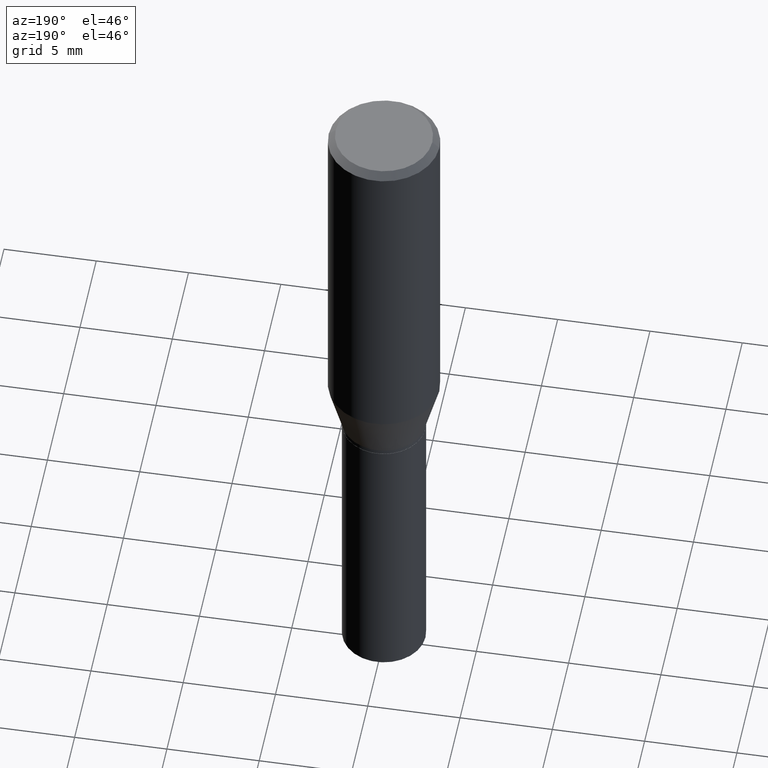
[diagram: clean part render]
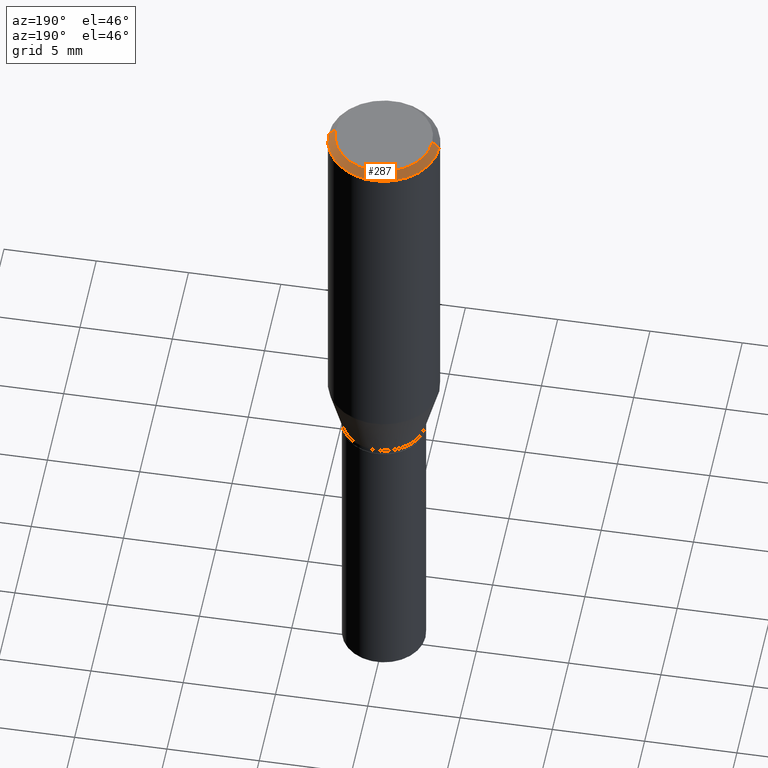
[diagram: same view with one face highlighted and labeled with its STEP entity id]
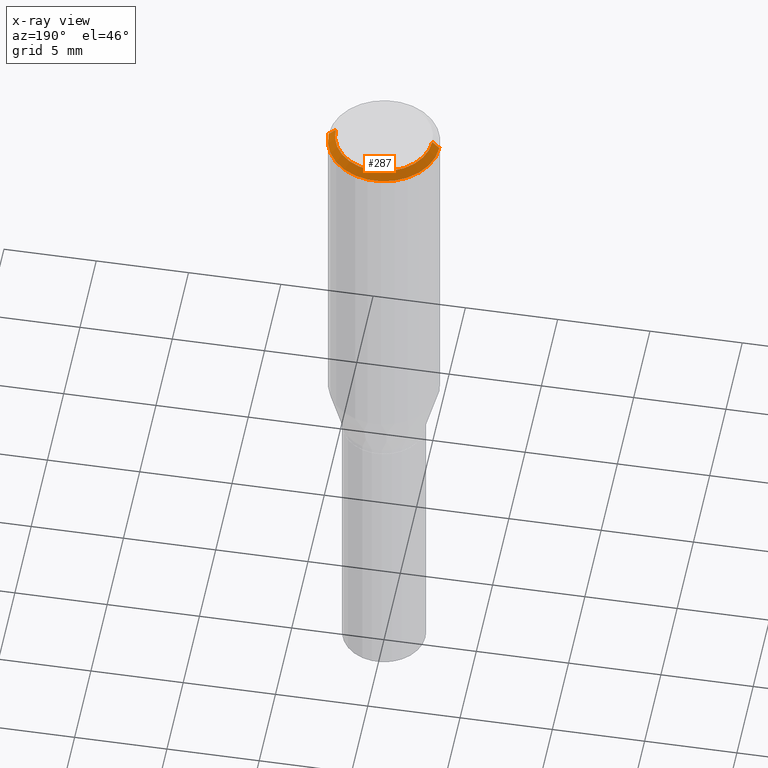
[diagram: x-ray of the same camera — body ghosted, the highlighted face saturated]
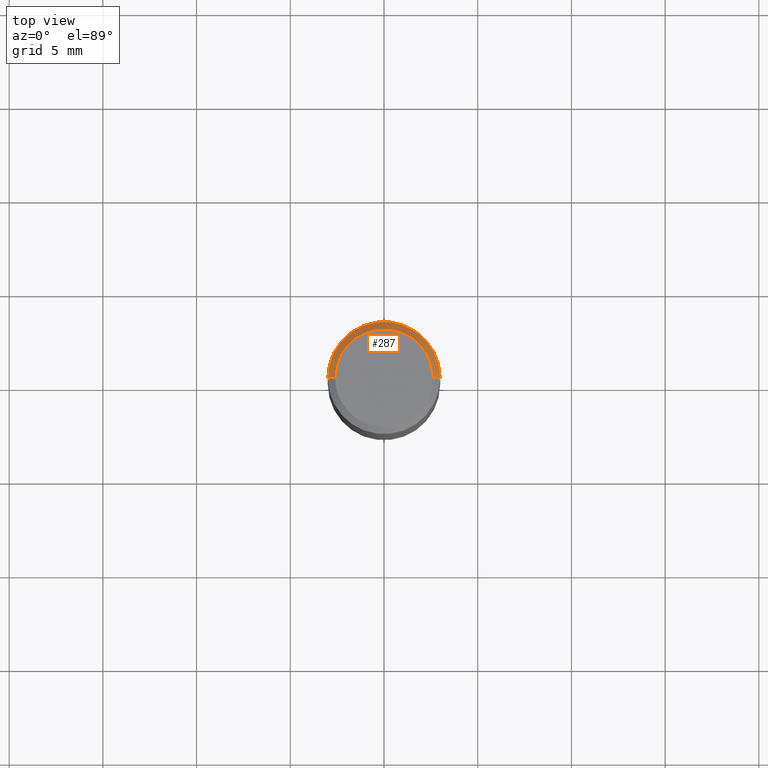
[diagram: same view with one face highlighted and labeled with its STEP entity id]
A machine part, auxiliary view. The second image highlights one B-rep face of the part: STEP entity #287.
The next image is the same camera in x-ray: the body ghosted, the highlighted face saturated — about 0% of this face is hidden behind the body in this view.
A second angle (top view) of the same face is appended — the face is thin or edge-on in the first view.
In plain terms, the highlighted conical surface has half-angle 45 deg.
Its self-contained STEP definition (entity closure, byte-faithful):
#5 = DIRECTION ( 'NONE',  ( 0.7071067811865516806, -7.319954787623268667E-15, -0.7071067811865431318 ) ) ;
#10 = CARTESIAN_POINT ( 'NONE',  ( 0.1180999999999999966, -8.625970336194650129E-16, -0.01499999999999999944 ) ) ;
#18 = CIRCLE ( 'NONE', #329, 0.1180999999999999966 ) ;
#41 = EDGE_CURVE ( 'NONE', #132, #335, #18, .T. ) ;
#57 = VERTEX_POINT ( 'NONE', #112 ) ;
#81 = DIRECTION ( 'NONE',  ( 1.000000000000000000, -6.982962677686265922E-15, 4.883331232093008327E-29 ) ) ;
#83 = LINE ( 'NONE', #10, #251 ) ;
#112 = CARTESIAN_POINT ( 'NONE',  ( -0.1031000000000000111, 7.461295621107772493E-16, -1.900413116462341961E-16 ) ) ;
#117 = CARTESIAN_POINT ( 'NONE',  ( 3.668203209277705088E-31, -5.237222008264718399E-17, -0.01499999999999999944 ) ) ;
#120 = CARTESIAN_POINT ( 'NONE',  ( 4.647400995173613138E-45, -6.635256932220833331E-31, -1.900413116462290932E-16 ) ) ;
#128 = EDGE_LOOP ( 'NONE', ( #437, #225, #180, #262 ) ) ;
#132 = VERTEX_POINT ( 'NONE', #183 ) ;
#163 = DIRECTION ( 'NONE',  ( -0.7071067811865516806, 2.468850131082300842E-15, -0.7071067811865431318 ) ) ;
#172 = VECTOR ( 'NONE', #163, 39.37007874015748854 ) ;
#180 = ORIENTED_EDGE ( 'NONE', *, *, #41, .T. ) ;
#183 = CARTESIAN_POINT ( 'NONE',  ( 0.1180999999999999966, -8.770601123173952432E-16, -0.01499999999999999944 ) ) ;
#188 = DIRECTION ( 'NONE',  ( -1.000000000000000000, 6.982962677686266711E-15, 0.000000000000000000 ) ) ;
#208 = CARTESIAN_POINT ( 'NONE',  ( 3.668203209277705088E-31, -5.237222008264718399E-17, -0.01499999999999999944 ) ) ;
#225 = ORIENTED_EDGE ( 'NONE', *, *, #451, .T. ) ;
#251 = VECTOR ( 'NONE', #5, 39.37007874015748854 ) ;
#262 = ORIENTED_EDGE ( 'NONE', *, *, #408, .F. ) ;
#283 = DIRECTION ( 'NONE',  ( 1.000000000000000000, -6.982962677686266711E-15, 0.000000000000000000 ) ) ;
#287 = ADVANCED_FACE ( 'NONE', ( #387 ), #460, .T. ) ;
#304 = AXIS2_PLACEMENT_3D ( 'NONE', #120, #394, #81 ) ;
#315 = AXIS2_PLACEMENT_3D ( 'NONE', #117, #317, #188 ) ;
#317 = DIRECTION ( 'NONE',  ( 2.445468806185136597E-29, -3.491481338843145583E-15, -1.000000000000000000 ) ) ;
#324 = EDGE_CURVE ( 'NONE', #370, #57, #374, .T. ) ;
#326 = CARTESIAN_POINT ( 'NONE',  ( -0.1180999999999999966, 7.723156721521009862E-16, -0.01499999999999999944 ) ) ;
#329 = AXIS2_PLACEMENT_3D ( 'NONE', #208, #449, #283 ) ;
#335 = VERTEX_POINT ( 'NONE', #358 ) ;
#358 = CARTESIAN_POINT ( 'NONE',  ( -0.1180999999999999966, -4.963484990620821929E-16, -0.01499999999999999944 ) ) ;
#362 = LINE ( 'NONE', #326, #172 ) ;
#370 = VERTEX_POINT ( 'NONE', #399 ) ;
#374 = CIRCLE ( 'NONE', #304, 0.1031000000000000111 ) ;
#387 = FACE_OUTER_BOUND ( 'NONE', #128, .T. ) ;
#394 = DIRECTION ( 'NONE',  ( -2.445468806185136597E-29, 3.491481338843145583E-15, 1.000000000000000000 ) ) ;
#399 = CARTESIAN_POINT ( 'NONE',  ( 0.1031000000000000111, -7.849571885948552706E-16, -1.900413116462238423E-16 ) ) ;
#408 = EDGE_CURVE ( 'NONE', #57, #335, #362, .T. ) ;
#437 = ORIENTED_EDGE ( 'NONE', *, *, #324, .F. ) ;
#449 = DIRECTION ( 'NONE',  ( -2.445468806185136597E-29, 3.491481338843145583E-15, 1.000000000000000000 ) ) ;
#451 = EDGE_CURVE ( 'NONE', #370, #132, #83, .T. ) ;
#460 = CONICAL_SURFACE ( 'NONE', #315, 0.1180999999999999966, 0.7853981633974543852 ) ;